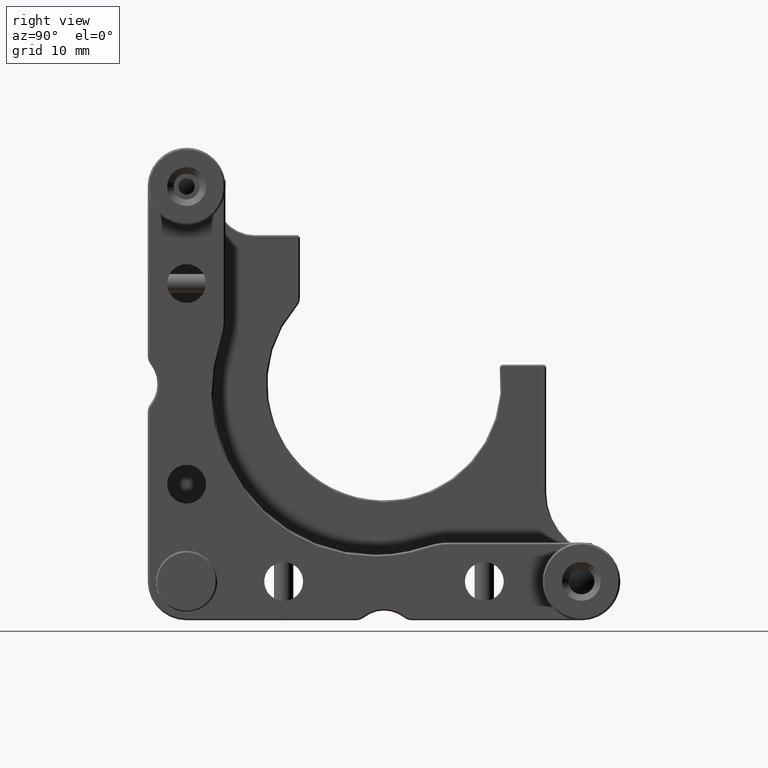
[diagram: clean part render]
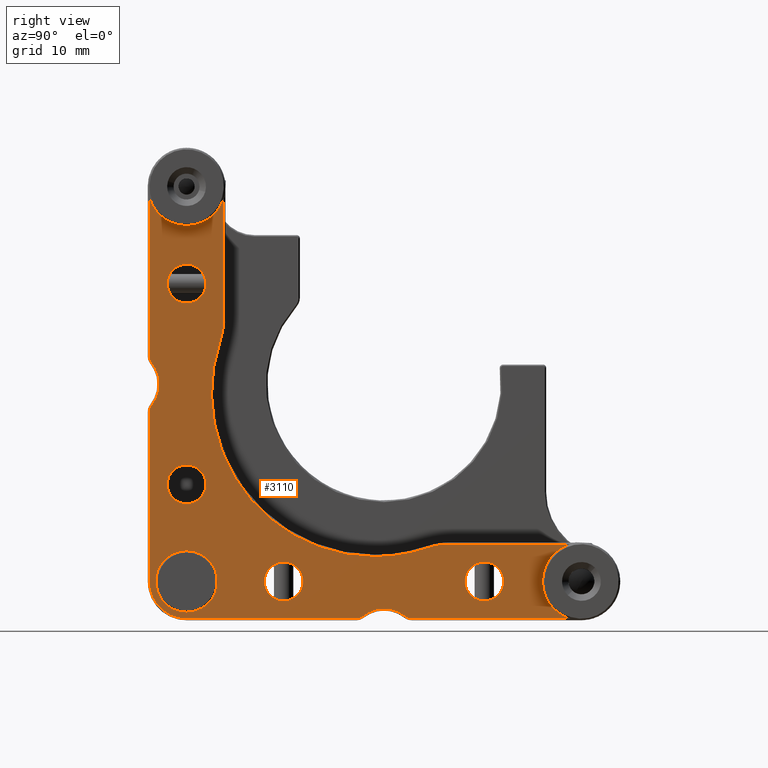
[diagram: same view with one face highlighted and labeled with its STEP entity id]
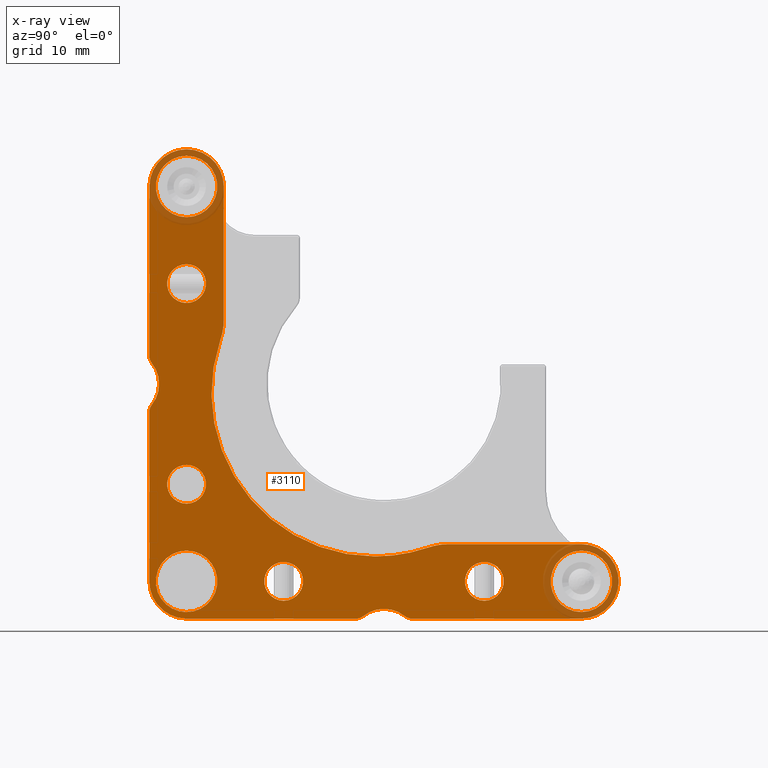
[diagram: x-ray of the same camera — body ghosted, the highlighted face saturated]
A machine part, right view. The second image highlights one B-rep face of the part: STEP entity #3110.
The next image is the same camera in x-ray: the body ghosted, the highlighted face saturated — about 6% of this face is hidden behind the body in this view.
In plain terms, the highlighted planar face has unit normal (1, 0, 0).
Its self-contained STEP definition (entity closure, byte-faithful):
#17 = EDGE_CURVE ( 'NONE', #10441, #8669, #913, .T. ) ;
#68 = DIRECTION ( 'NONE',  ( 0.000000000000000000, 0.000000000000000000, -1.000000000000000000 ) ) ;
#119 = EDGE_CURVE ( 'NONE', #2314, #14465, #3150, .T. ) ;
#167 = AXIS2_PLACEMENT_3D ( 'NONE', #10443, #11777, #3466 ) ;
#168 = VECTOR ( 'NONE', #8548, 1000.000000000000000 ) ;
#197 = CARTESIAN_POINT ( 'NONE',  ( 14.52438067708579972, -26.06707137695327958, 82.49999999999998579 ) ) ;
#205 = CIRCLE ( 'NONE', #13472, 2.999999999999995559 ) ;
#227 = VERTEX_POINT ( 'NONE', #6664 ) ;
#318 = ORIENTED_EDGE ( 'NONE', *, *, #2810, .F. ) ;
#382 = CARTESIAN_POINT ( 'NONE',  ( 14.52438067708579972, -31.81707137695321563, 64.50000000000001421 ) ) ;
#390 = CARTESIAN_POINT ( 'NONE',  ( 14.52438067708579972, -37.56707137695320142, 21.49999999999999289 ) ) ;
#393 = AXIS2_PLACEMENT_3D ( 'NONE', #6181, #8691, #2657 ) ;
#474 = LINE ( 'NONE', #5251, #13494 ) ;
#599 = CARTESIAN_POINT ( 'NONE',  ( 14.52438067708579972, -31.81707137695322629, 82.49999999999998579 ) ) ;
#643 = DIRECTION ( 'NONE',  ( 1.000000000000000000, 0.000000000000000000, 0.000000000000000000 ) ) ;
#737 = VERTEX_POINT ( 'NONE', #9688 ) ;
#783 = CARTESIAN_POINT ( 'NONE',  ( 14.52438067708579972, -31.81707137695324761, 87.25000000000000000 ) ) ;
#913 = CIRCLE ( 'NONE', #167, 4.750000000000004441 ) ;
#950 = EDGE_LOOP ( 'NONE', ( #12681, #13701 ) ) ;
#971 = DIRECTION ( 'NONE',  ( 0.000000000000000000, 0.000000000000000000, -1.000000000000000000 ) ) ;
#997 = EDGE_CURVE ( 'NONE', #14465, #11702, #5416, .T. ) ;
#1061 = CIRCLE ( 'NONE', #11565, 9.749999999999966249 ) ;
#1115 = AXIS2_PLACEMENT_3D ( 'NONE', #2783, #12275, #9912 ) ;
#1156 = DIRECTION ( 'NONE',  ( 1.000000000000000000, 0.000000000000000000, 0.000000000000000000 ) ) ;
#1169 = CARTESIAN_POINT ( 'NONE',  ( 14.52438067708579972, 8.657901150486123854, 27.24999999999996803 ) ) ;
#1198 = EDGE_CURVE ( 'NONE', #9983, #3678, #10160, .T. ) ;
#1240 = EDGE_LOOP ( 'NONE', ( #10560, #6065 ) ) ;
#1243 = DIRECTION ( 'NONE',  ( 0.000000000000000000, 0.000000000000000000, -1.000000000000000000 ) ) ;
#1283 = CIRCLE ( 'NONE', #12573, 9.749999999999975131 ) ;
#1314 = EDGE_CURVE ( 'NONE', #6450, #2372, #15430, .T. ) ;
#1346 = EDGE_CURVE ( 'NONE', #15461, #4322, #1642, .T. ) ;
#1357 = EDGE_CURVE ( 'NONE', #6985, #13392, #2393, .T. ) ;
#1368 = CIRCLE ( 'NONE', #3363, 5.749999999999970690 ) ;
#1390 = PLANE ( 'NONE',  #12090 ) ;
#1629 = ORIENTED_EDGE ( 'NONE', *, *, #10319, .F. ) ;
#1634 = CARTESIAN_POINT ( 'NONE',  ( 14.52438067708579972, 14.18292862304677016, 21.50000000000000000 ) ) ;
#1642 = CIRCLE ( 'NONE', #12686, 1.749999999999973799 ) ;
#1717 = ORIENTED_EDGE ( 'NONE', *, *, #11508, .F. ) ;
#1718 = DIRECTION ( 'NONE',  ( 0.000000000000000000, 0.000000000000000000, -1.000000000000000000 ) ) ;
#1818 = DIRECTION ( 'NONE',  ( 0.000000000000000000, 0.000000000000000000, -1.000000000000000000 ) ) ;
#1820 = EDGE_CURVE ( 'NONE', #8868, #5075, #1368, .T. ) ;
#1837 = DIRECTION ( 'NONE',  ( 1.000000000000000000, 0.000000000000000000, 0.000000000000000000 ) ) ;
#1935 = EDGE_CURVE ( 'NONE', #3443, #3557, #8619, .T. ) ;
#2010 = CARTESIAN_POINT ( 'NONE',  ( 14.52438067708579972, 14.18292862304677016, 24.49999999999998224 ) ) ;
#2185 = CARTESIAN_POINT ( 'NONE',  ( 14.52438067708579972, -31.81707137695321563, 67.50000000000000000 ) ) ;
#2243 = DIRECTION ( 'NONE',  ( -1.000000000000000000, -0.000000000000000000, -0.000000000000000000 ) ) ;
#2266 = DIRECTION ( 'NONE',  ( 0.000000000000000000, 1.321694076934703697E-15, -1.000000000000000000 ) ) ;
#2279 = CARTESIAN_POINT ( 'NONE',  ( 14.52438067708579972, -4.564666641144881964, 16.12500000000002132 ) ) ;
#2314 = VERTEX_POINT ( 'NONE', #5832 ) ;
#2357 = VERTEX_POINT ( 'NONE', #2857 ) ;
#2372 = VERTEX_POINT ( 'NONE', #5131 ) ;
#2384 = ORIENTED_EDGE ( 'NONE', *, *, #5308, .F. ) ;
#2393 = CIRCLE ( 'NONE', #11158, 1.749999999999973799 ) ;
#2471 = CARTESIAN_POINT ( 'NONE',  ( 14.52438067708579972, -31.81707137695323340, 16.75000000000000000 ) ) ;
#2531 = ORIENTED_EDGE ( 'NONE', *, *, #3765, .T. ) ;
#2536 = CARTESIAN_POINT ( 'NONE',  ( 14.52438067708579972, -31.81707137695324761, 88.24999999999997158 ) ) ;
#2625 = CARTESIAN_POINT ( 'NONE',  ( 14.52438067708579972, -37.19207137695320142, 48.75240473580848999 ) ) ;
#2643 = CARTESIAN_POINT ( 'NONE',  ( 14.52438067708579972, -37.56707137695320142, 21.49999999999999289 ) ) ;
#2657 = DIRECTION ( 'NONE',  ( 0.000000000000000000, 0.000000000000000000, -1.000000000000000000 ) ) ;
#2711 = ORIENTED_EDGE ( 'NONE', *, *, #8079, .T. ) ;
#2748 = CIRCLE ( 'NONE', #4759, 5.250000000000023981 ) ;
#2783 = CARTESIAN_POINT ( 'NONE',  ( 14.52438067708579972, -31.81707137695323340, 36.50000000000002132 ) ) ;
#2810 = EDGE_CURVE ( 'NONE', #737, #14111, #3568, .T. ) ;
#2857 = CARTESIAN_POINT ( 'NONE',  ( 14.52438067708579972, 1.930523887238422276, 16.12500000000002132 ) ) ;
#2927 = DIRECTION ( 'NONE',  ( 1.000000000000000000, 0.000000000000000000, 0.000000000000000000 ) ) ;
#2968 = VERTEX_POINT ( 'NONE', #2010 ) ;
#3045 = AXIS2_PLACEMENT_3D ( 'NONE', #2185, #13883, #5493 ) ;
#3110 = ADVANCED_FACE ( 'NONE', ( #11892, #10633, #9694, #14495, #3730, #8517, #3503, #12136 ), #1390, .T. ) ;
#3150 = CIRCLE ( 'NONE', #6166, 5.749999999999970690 ) ;
#3193 = CARTESIAN_POINT ( 'NONE',  ( 14.52438067708579972, -31.81707137695323340, 15.75000000000002842 ) ) ;
#3228 = VERTEX_POINT ( 'NONE', #9930 ) ;
#3233 = CARTESIAN_POINT ( 'NONE',  ( 14.52438067708579972, 34.93292862304674173, 21.50000000000000000 ) ) ;
#3234 = VECTOR ( 'NONE', #11178, 1000.000000000000000 ) ;
#3319 = CARTESIAN_POINT ( 'NONE',  ( 14.52438067708579972, -31.81707137695323340, 33.50000000000002132 ) ) ;
#3326 = CARTESIAN_POINT ( 'NONE',  ( 14.52438067708579972, -31.81707137695321563, 67.50000000000000000 ) ) ;
#3363 = AXIS2_PLACEMENT_3D ( 'NONE', #15426, #11577, #11657 ) ;
#3443 = VERTEX_POINT ( 'NONE', #14290 ) ;
#3466 = DIRECTION ( 'NONE',  ( 0.000000000000000000, 0.000000000000000000, -1.000000000000000000 ) ) ;
#3475 = DIRECTION ( 'NONE',  ( 1.000000000000000000, 0.000000000000000000, 0.000000000000000000 ) ) ;
#3499 = CARTESIAN_POINT ( 'NONE',  ( 14.52438067708579972, -2.717071376953227979, 50.60000000000000142 ) ) ;
#3503 = FACE_BOUND ( 'NONE', #1240, .T. ) ;
#3557 = VERTEX_POINT ( 'NONE', #5717 ) ;
#3568 = CIRCLE ( 'NONE', #15347, 2.999999999999995559 ) ;
#3617 = EDGE_LOOP ( 'NONE', ( #4202, #7332 ) ) ;
#3625 = DIRECTION ( 'NONE',  ( 0.000000000000000000, 0.000000000000000000, -1.000000000000000000 ) ) ;
#3678 = VERTEX_POINT ( 'NONE', #9466 ) ;
#3722 = CARTESIAN_POINT ( 'NONE',  ( 14.52438067708579972, 29.18292862304677016, 27.24999999999997158 ) ) ;
#3730 = FACE_BOUND ( 'NONE', #13667, .T. ) ;
#3738 = CARTESIAN_POINT ( 'NONE',  ( 14.52438067708579972, -1.317071376953229622, 11.99999999999999645 ) ) ;
#3765 = EDGE_CURVE ( 'NONE', #2357, #5371, #10358, .T. ) ;
#3795 = CIRCLE ( 'NONE', #3045, 2.999999999999988898 ) ;
#3811 = VERTEX_POINT ( 'NONE', #12380 ) ;
#3824 = ORIENTED_EDGE ( 'NONE', *, *, #4135, .T. ) ;
#3875 = ORIENTED_EDGE ( 'NONE', *, *, #997, .T. ) ;
#3880 = DIRECTION ( 'NONE',  ( -1.000000000000000000, -0.000000000000000000, -0.000000000000000000 ) ) ;
#3902 = CIRCLE ( 'NONE', #11175, 5.749999999999976907 ) ;
#3999 = CIRCLE ( 'NONE', #12523, 2.999999999999988898 ) ;
#4008 = DIRECTION ( 'NONE',  ( 1.000000000000000000, 0.000000000000000000, -0.000000000000000000 ) ) ;
#4135 = EDGE_CURVE ( 'NONE', #3811, #10901, #7649, .T. ) ;
#4147 = EDGE_CURVE ( 'NONE', #9767, #3443, #8985, .T. ) ;
#4192 = ORIENTED_EDGE ( 'NONE', *, *, #8251, .T. ) ;
#4202 = ORIENTED_EDGE ( 'NONE', *, *, #4458, .F. ) ;
#4244 = DIRECTION ( 'NONE',  ( 1.000000000000000000, 0.000000000000000000, 0.000000000000000000 ) ) ;
#4315 = DIRECTION ( 'NONE',  ( 0.000000000000000000, 0.000000000000000000, -1.000000000000000000 ) ) ;
#4322 = VERTEX_POINT ( 'NONE', #4434 ) ;
#4434 = CARTESIAN_POINT ( 'NONE',  ( 14.52438067708579972, -37.19207137695320142, 55.24759526419178712 ) ) ;
#4436 = DIRECTION ( 'NONE',  ( 1.000000000000000000, 0.000000000000000000, 0.000000000000000000 ) ) ;
#4458 = EDGE_CURVE ( 'NONE', #6090, #4601, #3999, .T. ) ;
#4516 = ORIENTED_EDGE ( 'NONE', *, *, #11571, .T. ) ;
#4543 = DIRECTION ( 'NONE',  ( 0.000000000000000000, 0.000000000000000000, -1.000000000000000000 ) ) ;
#4600 = CARTESIAN_POINT ( 'NONE',  ( 14.52438067708579972, -37.56707137695320142, 82.49999999999998579 ) ) ;
#4601 = VERTEX_POINT ( 'NONE', #14753 ) ;
#4759 = AXIS2_PLACEMENT_3D ( 'NONE', #3738, #8303, #1243 ) ;
#4824 = EDGE_CURVE ( 'NONE', #13392, #2357, #2748, .T. ) ;
#5075 = VERTEX_POINT ( 'NONE', #3193 ) ;
#5131 = CARTESIAN_POINT ( 'NONE',  ( 14.52438067708579972, -37.56707137695320142, 47.66987298107795823 ) ) ;
#5182 = DIRECTION ( 'NONE',  ( 0.000000000000000000, 0.000000000000000000, -1.000000000000000000 ) ) ;
#5230 = EDGE_CURVE ( 'NONE', #5419, #8265, #7762, .T. ) ;
#5251 = CARTESIAN_POINT ( 'NONE',  ( 14.52438067708579972, -37.56707137695320142, 56.33012701892232599 ) ) ;
#5308 = EDGE_CURVE ( 'NONE', #227, #2968, #13337, .T. ) ;
#5323 = DIRECTION ( 'NONE',  ( 0.000000000000000000, 0.000000000000000000, -1.000000000000000000 ) ) ;
#5338 = DIRECTION ( 'NONE',  ( 0.000000000000000000, 1.000000000000000000, 9.505334114941409750E-17 ) ) ;
#5354 = ORIENTED_EDGE ( 'NONE', *, *, #14911, .F. ) ;
#5371 = VERTEX_POINT ( 'NONE', #9578 ) ;
#5376 = DIRECTION ( 'NONE',  ( 0.000000000000000000, 0.000000000000000000, -1.000000000000000000 ) ) ;
#5416 = CIRCLE ( 'NONE', #8908, 5.749999999999970690 ) ;
#5419 = VERTEX_POINT ( 'NONE', #11072 ) ;
#5447 = EDGE_CURVE ( 'NONE', #8265, #5419, #10828, .T. ) ;
#5493 = DIRECTION ( 'NONE',  ( 0.000000000000000000, 0.000000000000000000, 1.000000000000000000 ) ) ;
#5494 = CARTESIAN_POINT ( 'NONE',  ( 14.52438067708579972, -35.81707137695322274, 47.66987298107795823 ) ) ;
#5505 = DIRECTION ( 'NONE',  ( 0.000000000000000000, 0.000000000000000000, -1.000000000000000000 ) ) ;
#5696 = AXIS2_PLACEMENT_3D ( 'NONE', #13028, #15133, #2266 ) ;
#5705 = ORIENTED_EDGE ( 'NONE', *, *, #10564, .T. ) ;
#5717 = CARTESIAN_POINT ( 'NONE',  ( 14.52438067708579972, -26.59635709123898550, 58.80623018050977890 ) ) ;
#5749 = DIRECTION ( 'NONE',  ( 0.000000000000000000, 0.000000000000000000, -1.000000000000000000 ) ) ;
#5832 = CARTESIAN_POINT ( 'NONE',  ( 14.52438067708579972, 29.18292862304677016, 15.75000000000002842 ) ) ;
#5870 = CIRCLE ( 'NONE', #1115, 2.999999999999995559 ) ;
#5871 = AXIS2_PLACEMENT_3D ( 'NONE', #3499, #2243, #68 ) ;
#5932 = DIRECTION ( 'NONE',  ( 0.000000000000000000, 0.000000000000000000, -1.000000000000000000 ) ) ;
#6065 = ORIENTED_EDGE ( 'NONE', *, *, #12096, .F. ) ;
#6068 = ORIENTED_EDGE ( 'NONE', *, *, #1357, .T. ) ;
#6090 = VERTEX_POINT ( 'NONE', #382 ) ;
#6120 = CARTESIAN_POINT ( 'NONE',  ( 14.52438067708579972, -16.81707137695321563, 21.50000000000000000 ) ) ;
#6166 = AXIS2_PLACEMENT_3D ( 'NONE', #11939, #13356, #6200 ) ;
#6178 = CARTESIAN_POINT ( 'NONE',  ( 14.52438067708579972, 3.013055641968952703, 17.50000000000000000 ) ) ;
#6181 = CARTESIAN_POINT ( 'NONE',  ( 14.52438067708579972, 29.18292862304677016, 21.50000000000000000 ) ) ;
#6200 = DIRECTION ( 'NONE',  ( 0.000000000000000000, 0.000000000000000000, -1.000000000000000000 ) ) ;
#6216 = VERTEX_POINT ( 'NONE', #10314 ) ;
#6255 = AXIS2_PLACEMENT_3D ( 'NONE', #9200, #1837, #971 ) ;
#6321 = AXIS2_PLACEMENT_3D ( 'NONE', #14378, #3475, #5749 ) ;
#6413 = ORIENTED_EDGE ( 'NONE', *, *, #7598, .T. ) ;
#6450 = VERTEX_POINT ( 'NONE', #2625 ) ;
#6498 = ORIENTED_EDGE ( 'NONE', *, *, #10162, .T. ) ;
#6510 = CARTESIAN_POINT ( 'NONE',  ( 14.52438067708579972, -31.81707137695324761, 82.49999999999998579 ) ) ;
#6664 = CARTESIAN_POINT ( 'NONE',  ( 14.52438067708579972, 14.18292862304677016, 18.50000000000001421 ) ) ;
#6734 = DIRECTION ( 'NONE',  ( 0.000000000000000000, 0.000000000000000000, -1.000000000000000000 ) ) ;
#6825 = CARTESIAN_POINT ( 'NONE',  ( 14.52438067708579972, 29.18292862304677016, 16.75000000000000000 ) ) ;
#6936 = VERTEX_POINT ( 'NONE', #4600 ) ;
#6985 = VERTEX_POINT ( 'NONE', #9524 ) ;
#7010 = ORIENTED_EDGE ( 'NONE', *, *, #1346, .T. ) ;
#7103 = AXIS2_PLACEMENT_3D ( 'NONE', #6178, #8689, #5323 ) ;
#7121 = LINE ( 'NONE', #1169, #7171 ) ;
#7171 = VECTOR ( 'NONE', #14885, 1000.000000000000000 ) ;
#7206 = CARTESIAN_POINT ( 'NONE',  ( 14.52438067708579972, 5.489158803556599686, 26.72071428571425855 ) ) ;
#7266 = EDGE_LOOP ( 'NONE', ( #6498, #6068, #14672, #2531, #2711, #9072, #3875, #5705, #4192, #15258, #14661, #12934, #3824, #6413, #14395, #4516, #7010, #7413, #9668, #7681, #11287 ) ) ;
#7332 = ORIENTED_EDGE ( 'NONE', *, *, #8641, .F. ) ;
#7413 = ORIENTED_EDGE ( 'NONE', *, *, #11321, .T. ) ;
#7598 = EDGE_CURVE ( 'NONE', #10901, #13221, #13563, .T. ) ;
#7617 = ORIENTED_EDGE ( 'NONE', *, *, #14794, .F. ) ;
#7649 = LINE ( 'NONE', #11256, #3234 ) ;
#7656 = LINE ( 'NONE', #2643, #15437 ) ;
#7681 = ORIENTED_EDGE ( 'NONE', *, *, #13844, .T. ) ;
#7762 = CIRCLE ( 'NONE', #6255, 4.749999999999997335 ) ;
#8079 = EDGE_CURVE ( 'NONE', #5371, #2314, #15119, .T. ) ;
#8090 = CARTESIAN_POINT ( 'NONE',  ( 14.52438067708579972, -37.56707137695320142, 56.33012701892232599 ) ) ;
#8197 = DIRECTION ( 'NONE',  ( 1.000000000000000000, 0.000000000000000000, -0.000000000000000000 ) ) ;
#8251 = EDGE_CURVE ( 'NONE', #6216, #9767, #1283, .T. ) ;
#8265 = VERTEX_POINT ( 'NONE', #2471 ) ;
#8303 = DIRECTION ( 'NONE',  ( -1.000000000000000000, -0.000000000000000000, -0.000000000000000000 ) ) ;
#8460 = CARTESIAN_POINT ( 'NONE',  ( 14.52438067708579972, -35.81707137695325116, 61.97497252743929153 ) ) ;
#8517 = FACE_BOUND ( 'NONE', #950, .T. ) ;
#8548 = DIRECTION ( 'NONE',  ( 0.000000000000000000, 1.000000000000000000, 9.505334114941409750E-17 ) ) ;
#8619 = CIRCLE ( 'NONE', #5871, 25.25000000000002842 ) ;
#8623 = DIRECTION ( 'NONE',  ( 0.000000000000000000, 0.000000000000000000, 1.000000000000000000 ) ) ;
#8641 = EDGE_CURVE ( 'NONE', #4601, #6090, #3795, .T. ) ;
#8666 = AXIS2_PLACEMENT_3D ( 'NONE', #5494, #10191, #11367 ) ;
#8669 = VERTEX_POINT ( 'NONE', #783 ) ;
#8689 = DIRECTION ( 'NONE',  ( 1.000000000000000000, 0.000000000000000000, 0.000000000000000000 ) ) ;
#8691 = DIRECTION ( 'NONE',  ( 1.000000000000000000, 0.000000000000000000, 0.000000000000000000 ) ) ;
#8762 = EDGE_CURVE ( 'NONE', #3557, #3811, #1061, .T. ) ;
#8868 = VERTEX_POINT ( 'NONE', #390 ) ;
#8876 = DIRECTION ( 'NONE',  ( 1.000000000000000000, 0.000000000000000000, 0.000000000000000000 ) ) ;
#8908 = AXIS2_PLACEMENT_3D ( 'NONE', #9279, #4436, #12904 ) ;
#8985 = CIRCLE ( 'NONE', #14514, 25.25000000000002842 ) ;
#9072 = ORIENTED_EDGE ( 'NONE', *, *, #119, .T. ) ;
#9200 = CARTESIAN_POINT ( 'NONE',  ( 14.52438067708579972, -31.81707137695323340, 21.50000000000000000 ) ) ;
#9219 = AXIS2_PLACEMENT_3D ( 'NONE', #9979, #8876, #1818 ) ;
#9279 = CARTESIAN_POINT ( 'NONE',  ( 14.52438067708579972, 29.18292862304677016, 21.50000000000000000 ) ) ;
#9365 = CARTESIAN_POINT ( 'NONE',  ( 14.52438067708579972, -16.81707137695321563, 24.49999999999999289 ) ) ;
#9466 = CARTESIAN_POINT ( 'NONE',  ( 14.52438067708579972, 29.18292862304677016, 26.24999999999999645 ) ) ;
#9512 = DIRECTION ( 'NONE',  ( 1.000000000000000000, 0.000000000000000000, 0.000000000000000000 ) ) ;
#9524 = CARTESIAN_POINT ( 'NONE',  ( 14.52438067708579972, -5.647198395875415500, 15.75000000000003553 ) ) ;
#9560 = CARTESIAN_POINT ( 'NONE',  ( 14.52438067708579972, -5.647198395875415500, 15.75000000000003553 ) ) ;
#9578 = CARTESIAN_POINT ( 'NONE',  ( 14.52438067708579972, 3.013055641968950038, 15.75000000000003553 ) ) ;
#9668 = ORIENTED_EDGE ( 'NONE', *, *, #1314, .T. ) ;
#9688 = CARTESIAN_POINT ( 'NONE',  ( 14.52438067708579972, -16.81707137695321563, 18.50000000000000355 ) ) ;
#9694 = FACE_BOUND ( 'NONE', #15307, .T. ) ;
#9767 = VERTEX_POINT ( 'NONE', #7206 ) ;
#9912 = DIRECTION ( 'NONE',  ( 0.000000000000000000, 0.000000000000000000, -1.000000000000000000 ) ) ;
#9930 = CARTESIAN_POINT ( 'NONE',  ( 14.52438067708579972, -31.81707137695323340, 39.50000000000001421 ) ) ;
#9962 = DIRECTION ( 'NONE',  ( 0.000000000000000000, 0.000000000000000000, 1.000000000000000000 ) ) ;
#9967 = CIRCLE ( 'NONE', #9219, 4.750000000000004441 ) ;
#9979 = CARTESIAN_POINT ( 'NONE',  ( 14.52438067708579972, -31.81707137695324761, 82.49999999999998579 ) ) ;
#9983 = VERTEX_POINT ( 'NONE', #6825 ) ;
#10031 = DIRECTION ( 'NONE',  ( 1.000000000000000000, 0.000000000000000000, 0.000000000000000000 ) ) ;
#10160 = CIRCLE ( 'NONE', #11661, 4.749999999999997335 ) ;
#10162 = EDGE_CURVE ( 'NONE', #5075, #6985, #14522, .T. ) ;
#10182 = CARTESIAN_POINT ( 'NONE',  ( 14.52438067708579972, 29.18292862304677016, 15.75000000000003553 ) ) ;
#10191 = DIRECTION ( 'NONE',  ( 1.000000000000000000, 0.000000000000000000, 0.000000000000000000 ) ) ;
#10314 = CARTESIAN_POINT ( 'NONE',  ( 14.52438067708579972, 8.657901150486123854, 27.24999999999996803 ) ) ;
#10319 = EDGE_CURVE ( 'NONE', #15007, #3228, #12198, .T. ) ;
#10358 = CIRCLE ( 'NONE', #7103, 1.749999999999973799 ) ;
#10422 = AXIS2_PLACEMENT_3D ( 'NONE', #11212, #10031, #5182 ) ;
#10441 = VERTEX_POINT ( 'NONE', #11442 ) ;
#10443 = CARTESIAN_POINT ( 'NONE',  ( 14.52438067708579972, -31.81707137695324761, 82.49999999999998579 ) ) ;
#10560 = ORIENTED_EDGE ( 'NONE', *, *, #17, .F. ) ;
#10564 = EDGE_CURVE ( 'NONE', #11702, #6216, #7121, .T. ) ;
#10633 = FACE_BOUND ( 'NONE', #3617, .T. ) ;
#10782 = AXIS2_PLACEMENT_3D ( 'NONE', #6510, #4244, #5505 ) ;
#10828 = CIRCLE ( 'NONE', #14103, 4.749999999999997335 ) ;
#10901 = VERTEX_POINT ( 'NONE', #197 ) ;
#10943 = CARTESIAN_POINT ( 'NONE',  ( 14.52438067708579972, -2.717071376953227979, 50.60000000000000142 ) ) ;
#11072 = CARTESIAN_POINT ( 'NONE',  ( 14.52438067708579972, -31.81707137695323340, 26.24999999999999645 ) ) ;
#11094 = EDGE_LOOP ( 'NONE', ( #318, #7617 ) ) ;
#11158 = AXIS2_PLACEMENT_3D ( 'NONE', #11595, #14978, #6734 ) ;
#11175 = AXIS2_PLACEMENT_3D ( 'NONE', #599, #14860, #5376 ) ;
#11178 = DIRECTION ( 'NONE',  ( 0.000000000000000000, 0.000000000000000000, 1.000000000000000000 ) ) ;
#11212 = CARTESIAN_POINT ( 'NONE',  ( 14.52438067708579972, -31.81707137695323340, 36.50000000000002132 ) ) ;
#11256 = CARTESIAN_POINT ( 'NONE',  ( 14.52438067708579972, -26.06707137695327958, 82.49999999999998579 ) ) ;
#11279 = DIRECTION ( 'NONE',  ( 1.000000000000000000, 0.000000000000000000, 0.000000000000000000 ) ) ;
#11287 = ORIENTED_EDGE ( 'NONE', *, *, #1820, .T. ) ;
#11321 = EDGE_CURVE ( 'NONE', #4322, #6450, #13729, .T. ) ;
#11367 = DIRECTION ( 'NONE',  ( 0.000000000000000000, 0.000000000000000000, -1.000000000000000000 ) ) ;
#11442 = CARTESIAN_POINT ( 'NONE',  ( 14.52438067708579972, -31.81707137695324761, 77.74999999999998579 ) ) ;
#11508 = EDGE_CURVE ( 'NONE', #2968, #227, #14972, .T. ) ;
#11565 = AXIS2_PLACEMENT_3D ( 'NONE', #8460, #14431, #12145 ) ;
#11571 = EDGE_CURVE ( 'NONE', #6936, #15461, #474, .T. ) ;
#11577 = DIRECTION ( 'NONE',  ( 1.000000000000000000, 0.000000000000000000, 0.000000000000000000 ) ) ;
#11583 = DIRECTION ( 'NONE',  ( 1.000000000000000000, 0.000000000000000000, 0.000000000000000000 ) ) ;
#11595 = CARTESIAN_POINT ( 'NONE',  ( 14.52438067708579972, -5.647198395875412835, 17.50000000000000000 ) ) ;
#11657 = DIRECTION ( 'NONE',  ( 0.000000000000000000, 0.000000000000000000, -1.000000000000000000 ) ) ;
#11661 = AXIS2_PLACEMENT_3D ( 'NONE', #13059, #9512, #3625 ) ;
#11693 = EDGE_LOOP ( 'NONE', ( #13144, #13453 ) ) ;
#11702 = VERTEX_POINT ( 'NONE', #3722 ) ;
#11777 = DIRECTION ( 'NONE',  ( 1.000000000000000000, 0.000000000000000000, 0.000000000000000000 ) ) ;
#11892 = FACE_OUTER_BOUND ( 'NONE', #7266, .T. ) ;
#11939 = CARTESIAN_POINT ( 'NONE',  ( 14.52438067708579972, 29.18292862304677016, 21.50000000000000000 ) ) ;
#12090 = AXIS2_PLACEMENT_3D ( 'NONE', #13088, #1156, #5932 ) ;
#12096 = EDGE_CURVE ( 'NONE', #8669, #10441, #9967, .T. ) ;
#12136 = FACE_BOUND ( 'NONE', #11693, .T. ) ;
#12145 = DIRECTION ( 'NONE',  ( 0.000000000000000000, 0.000000000000000000, -1.000000000000000000 ) ) ;
#12198 = CIRCLE ( 'NONE', #10422, 2.999999999999995559 ) ;
#12255 = CARTESIAN_POINT ( 'NONE',  ( 14.52438067708579972, -31.81707137695323340, 21.50000000000000000 ) ) ;
#12275 = DIRECTION ( 'NONE',  ( 1.000000000000000000, 0.000000000000000000, 0.000000000000000000 ) ) ;
#12380 = CARTESIAN_POINT ( 'NONE',  ( 14.52438067708579972, -26.06707137695327958, 61.97497252743929153 ) ) ;
#12446 = DIRECTION ( 'NONE',  ( 0.000000000000000000, 6.217523745580232658E-15, -1.000000000000000000 ) ) ;
#12523 = AXIS2_PLACEMENT_3D ( 'NONE', #3326, #8197, #8623 ) ;
#12573 = AXIS2_PLACEMENT_3D ( 'NONE', #14400, #11583, #4543 ) ;
#12681 = ORIENTED_EDGE ( 'NONE', *, *, #5447, .F. ) ;
#12686 = AXIS2_PLACEMENT_3D ( 'NONE', #12714, #643, #4315 ) ;
#12714 = CARTESIAN_POINT ( 'NONE',  ( 14.52438067708579972, -35.81707137695322274, 56.33012701892232599 ) ) ;
#12782 = EDGE_CURVE ( 'NONE', #3678, #9983, #15152, .T. ) ;
#12853 = DIRECTION ( 'NONE',  ( 0.000000000000000000, 0.000000000000000000, 1.000000000000000000 ) ) ;
#12904 = DIRECTION ( 'NONE',  ( 0.000000000000000000, 0.000000000000000000, -1.000000000000000000 ) ) ;
#12934 = ORIENTED_EDGE ( 'NONE', *, *, #8762, .T. ) ;
#13028 = CARTESIAN_POINT ( 'NONE',  ( 14.52438067708579972, -41.31707137695322984, 52.00000000000013500 ) ) ;
#13059 = CARTESIAN_POINT ( 'NONE',  ( 14.52438067708579972, 29.18292862304677016, 21.50000000000000000 ) ) ;
#13088 = CARTESIAN_POINT ( 'NONE',  ( 14.52438067708579972, -1.317071376953222739, 52.00000000000000711 ) ) ;
#13144 = ORIENTED_EDGE ( 'NONE', *, *, #1198, .F. ) ;
#13221 = VERTEX_POINT ( 'NONE', #2536 ) ;
#13337 = CIRCLE ( 'NONE', #6321, 2.999999999999985345 ) ;
#13356 = DIRECTION ( 'NONE',  ( 1.000000000000000000, 0.000000000000000000, 0.000000000000000000 ) ) ;
#13392 = VERTEX_POINT ( 'NONE', #2279 ) ;
#13394 = DIRECTION ( 'NONE',  ( 0.000000000000000000, 0.000000000000000000, -1.000000000000000000 ) ) ;
#13453 = ORIENTED_EDGE ( 'NONE', *, *, #12782, .F. ) ;
#13472 = AXIS2_PLACEMENT_3D ( 'NONE', #15200, #14189, #12853 ) ;
#13494 = VECTOR ( 'NONE', #1718, 1000.000000000000000 ) ;
#13563 = CIRCLE ( 'NONE', #10782, 5.749999999999976907 ) ;
#13667 = EDGE_LOOP ( 'NONE', ( #2384, #1717 ) ) ;
#13701 = ORIENTED_EDGE ( 'NONE', *, *, #5230, .F. ) ;
#13729 = CIRCLE ( 'NONE', #5696, 5.250000000000025757 ) ;
#13730 = DIRECTION ( 'NONE',  ( 0.000000000000000000, 0.000000000000000000, -1.000000000000000000 ) ) ;
#13844 = EDGE_CURVE ( 'NONE', #2372, #8868, #7656, .T. ) ;
#13883 = DIRECTION ( 'NONE',  ( 1.000000000000000000, 0.000000000000000000, -0.000000000000000000 ) ) ;
#14103 = AXIS2_PLACEMENT_3D ( 'NONE', #12255, #2927, #14842 ) ;
#14111 = VERTEX_POINT ( 'NONE', #9365 ) ;
#14189 = DIRECTION ( 'NONE',  ( 1.000000000000000000, 0.000000000000000000, -0.000000000000000000 ) ) ;
#14290 = CARTESIAN_POINT ( 'NONE',  ( 14.52438067708579972, -2.717071376953227979, 25.34999999999996945 ) ) ;
#14378 = CARTESIAN_POINT ( 'NONE',  ( 14.52438067708579972, 14.18292862304677016, 21.50000000000000000 ) ) ;
#14395 = ORIENTED_EDGE ( 'NONE', *, *, #14897, .T. ) ;
#14400 = CARTESIAN_POINT ( 'NONE',  ( 14.52438067708579972, 8.657901150486123854, 17.49999999999999645 ) ) ;
#14431 = DIRECTION ( 'NONE',  ( 1.000000000000000000, 0.000000000000000000, 0.000000000000000000 ) ) ;
#14465 = VERTEX_POINT ( 'NONE', #3233 ) ;
#14486 = AXIS2_PLACEMENT_3D ( 'NONE', #1634, #11279, #13730 ) ;
#14495 = FACE_BOUND ( 'NONE', #11094, .T. ) ;
#14514 = AXIS2_PLACEMENT_3D ( 'NONE', #10943, #3880, #12446 ) ;
#14522 = LINE ( 'NONE', #9560, #168 ) ;
#14661 = ORIENTED_EDGE ( 'NONE', *, *, #1935, .T. ) ;
#14672 = ORIENTED_EDGE ( 'NONE', *, *, #4824, .T. ) ;
#14753 = CARTESIAN_POINT ( 'NONE',  ( 14.52438067708579972, -31.81707137695321563, 70.50000000000000000 ) ) ;
#14794 = EDGE_CURVE ( 'NONE', #14111, #737, #205, .T. ) ;
#14812 = VECTOR ( 'NONE', #5338, 1000.000000000000000 ) ;
#14842 = DIRECTION ( 'NONE',  ( 0.000000000000000000, 0.000000000000000000, -1.000000000000000000 ) ) ;
#14860 = DIRECTION ( 'NONE',  ( 1.000000000000000000, 0.000000000000000000, 0.000000000000000000 ) ) ;
#14885 = DIRECTION ( 'NONE',  ( 0.000000000000000000, -1.000000000000000000, -2.448429006113450357E-16 ) ) ;
#14897 = EDGE_CURVE ( 'NONE', #13221, #6936, #3902, .T. ) ;
#14911 = EDGE_CURVE ( 'NONE', #3228, #15007, #5870, .T. ) ;
#14972 = CIRCLE ( 'NONE', #14486, 2.999999999999985345 ) ;
#14978 = DIRECTION ( 'NONE',  ( 1.000000000000000000, 0.000000000000000000, 0.000000000000000000 ) ) ;
#15007 = VERTEX_POINT ( 'NONE', #3319 ) ;
#15119 = LINE ( 'NONE', #10182, #14812 ) ;
#15133 = DIRECTION ( 'NONE',  ( -1.000000000000000000, -0.000000000000000000, -0.000000000000000000 ) ) ;
#15152 = CIRCLE ( 'NONE', #393, 4.749999999999997335 ) ;
#15200 = CARTESIAN_POINT ( 'NONE',  ( 14.52438067708579972, -16.81707137695321563, 21.50000000000000000 ) ) ;
#15258 = ORIENTED_EDGE ( 'NONE', *, *, #4147, .T. ) ;
#15307 = EDGE_LOOP ( 'NONE', ( #1629, #5354 ) ) ;
#15347 = AXIS2_PLACEMENT_3D ( 'NONE', #6120, #4008, #9962 ) ;
#15426 = CARTESIAN_POINT ( 'NONE',  ( 14.52438067708579972, -31.81707137695323340, 21.50000000000000000 ) ) ;
#15430 = CIRCLE ( 'NONE', #8666, 1.749999999999973799 ) ;
#15437 = VECTOR ( 'NONE', #13394, 1000.000000000000000 ) ;
#15461 = VERTEX_POINT ( 'NONE', #8090 ) ;